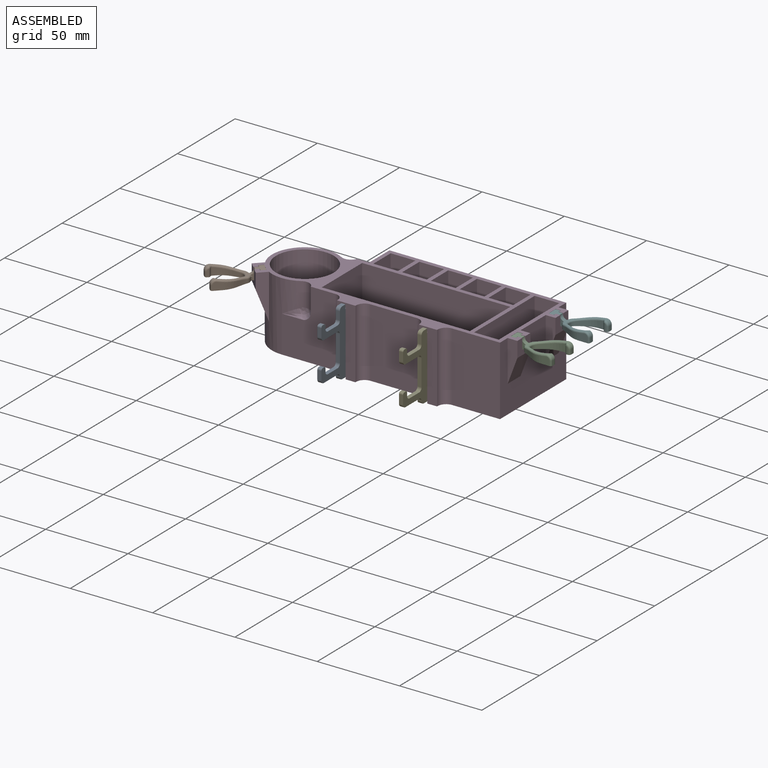
[diagram: assembled view]
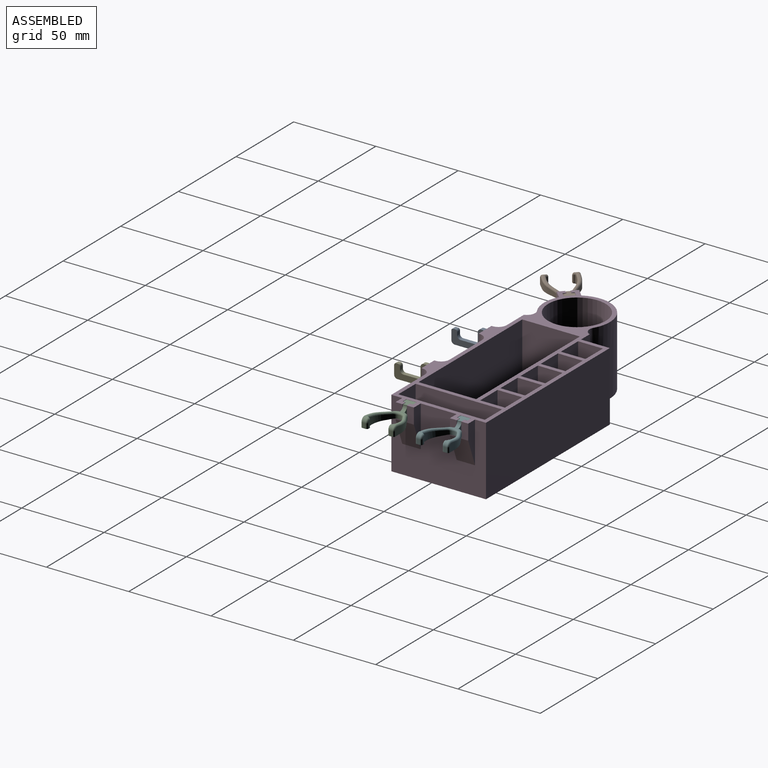
[diagram: assembled view, second angle]
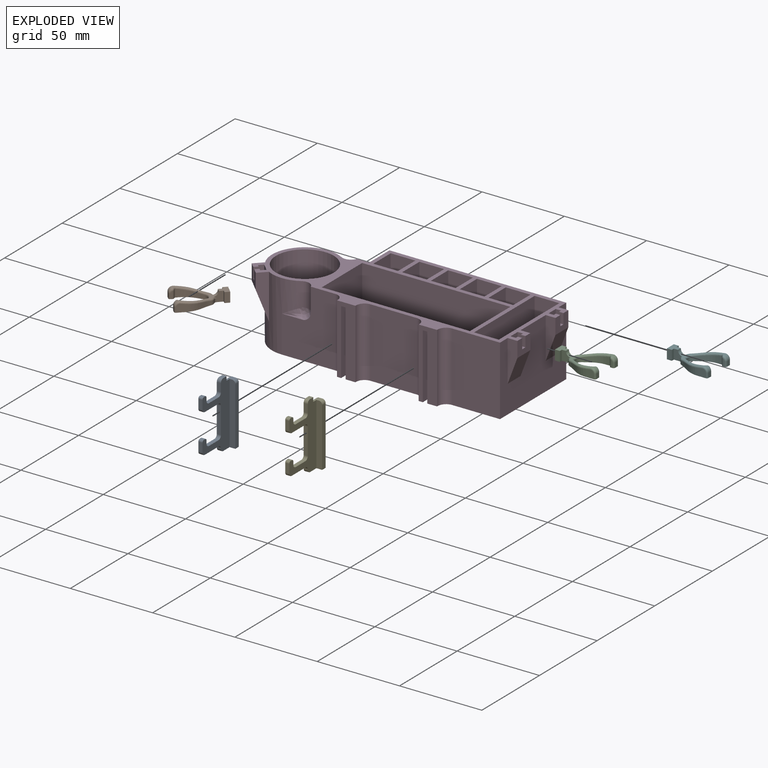
[diagram: exploded view]
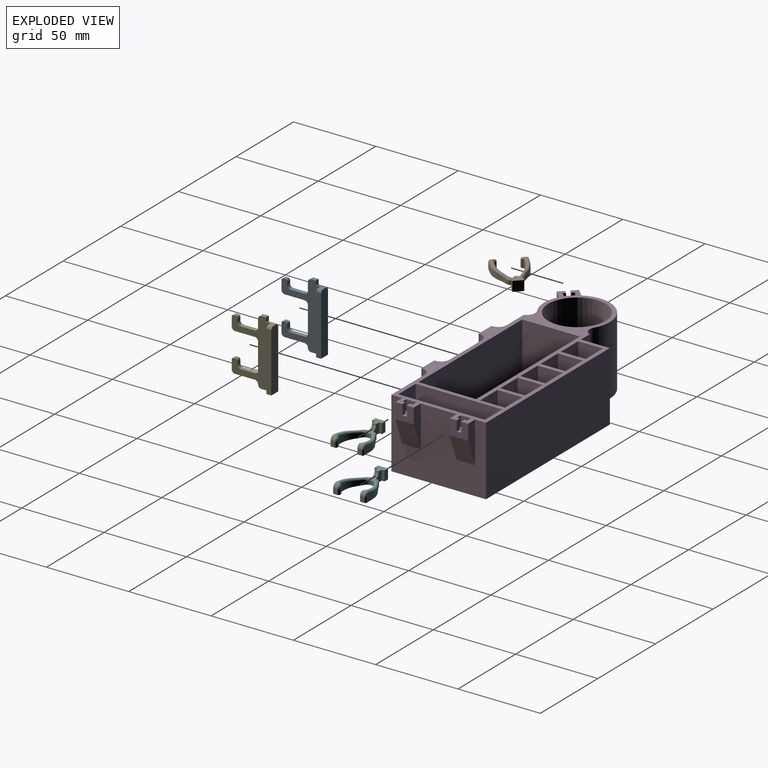
[diagram: exploded view, second angle]
ASSEMBLY  parts=6 mates=5
PART A: 38 faces, bbox 26.5x6x40 mm
  f0: plane 2.8x2.5mm, normal (0,0,1), area 7mm2, adj f15,f16,f19,f35
  f1: plane 16x2.5mm, normal (1,0,0), area 40mm2, adj f15,f16,f17,f22
  f2: plane 12x2.5mm, normal (0,0,-1), area 30mm2, adj f15,f16,f17,f24
  f3: plane 5.34x2.5mm, normal (1,0,0), area 13.3mm2, adj f15,f16,f24,f28
  f4: plane 2.5x1.17mm, normal (0,0,1), area 2.9mm2, adj f15,f16,f27,f28
  f5: plane 2.5x1.84mm, normal (-1,0,0), area 4.6mm2, adj f15,f16,f23,f27
  f6: plane 8.5x2.5mm, normal (0,0,1), area 21.2mm2, adj f15,f16,f18,f23
  f7: plane 5x2.5mm, normal (1,0,0), area 12.5mm2, adj f15,f16,f18,f19
  f8: plane 8.5x6mm, normal (0,0,-1), area 31.8mm2, adj f15,f16,f20,f31,f32,f33
  f9: plane 2.5x0mm, normal (1,0,0), area 0mm2, adj f15,f16,f20,f21
  f10: plane 12x2.5mm, normal (0,0,-1), area 30mm2, adj f15,f16,f21,f26
  f11: plane 5.34x2.5mm, normal (1,0,0), area 13.3mm2, adj f15,f16,f26,f30
  f12: plane 2.5x1.17mm, normal (0,0,1), area 2.9mm2, adj f15,f16,f29,f30
  f13: plane 2.5x1.84mm, normal (-1,0,0), area 4.6mm2, adj f15,f16,f25,f29
  f14: plane 8.5x2.5mm, normal (0,0,1), area 21.2mm2, adj f15,f16,f22,f25
  f15: plane 40.01x26.5mm, normal (0,-1,0), area 542.1mm2, adj f0,f1,f2,f3,f4,f5,f6,f7
  f16: plane 40.01x23.5mm, normal (0,1,0), area 440.8mm2, adj f0,f1,f2,f3,f4,f5,f6,f7
  f17: cylinder r=2mm len=2.5mm, axis (0,-1,0), area 7.9mm2, adj f1,f2,f15,f16
  f18: cylinder r=2mm len=2.5mm, axis (0,1,0), area 7.9mm2, adj f6,f7,f15,f16
  f19: cylinder r=2mm len=2.5mm, axis (0,-1,0), area 7.9mm2, adj f0,f7,f15,f16
  f20: cylinder r=2mm len=2.5mm, axis (0,1,0), area 7.9mm2, adj f8,f9,f15,f16
  f21: cylinder r=2mm len=2.5mm, axis (0,-1,0), area 7.9mm2, adj f9,f10,f15,f16
  f22: cylinder r=2mm len=2.5mm, axis (0,1,0), area 7.9mm2, adj f1,f14,f15,f16
  f23: cylinder r=2mm len=2.5mm, axis (0,1,0), area 7.9mm2, adj f5,f6,f15,f16
  f24: cylinder r=2mm len=2.5mm, axis (0,1,0), area 7.9mm2, adj f2,f3,f15,f16
  f25: cylinder r=2mm len=2.5mm, axis (0,1,0), area 7.9mm2, adj f13,f14,f15,f16
  f26: cylinder r=2mm len=2.5mm, axis (0,1,0), area 7.9mm2, adj f10,f11,f15,f16
  f27: cylinder r=1.17mm len=2.5mm, axis (0,-1,0), area 4.6mm2, adj f4,f5,f15,f16
  f28: cylinder r=1.17mm len=2.5mm, axis (0,-1,0), area 4.6mm2, adj f3,f4,f15,f16
  f29: cylinder r=1.17mm len=2.5mm, axis (0,-1,0), area 4.6mm2, adj f12,f13,f15,f16
  f30: cylinder r=1.17mm len=2.5mm, axis (0,-1,0), area 4.6mm2, adj f11,f12,f15,f16
  f31: plane 37.5x3.5mm, normal (1,0,0), area 130.4mm2, adj f8,f16,f32,f34,f37
  f32: plane 35.54x3mm, normal (0,1,0), area 106.6mm2, adj f8,f31,f33,f37
  f33: plane 37.5x6mm, normal (-1,0,0), area 223.3mm2, adj f8,f15,f32,f34,f36,f37
  f34: plane 5.7x2.08mm, normal (0,0,1), area 7.7mm2, adj f16,f31,f33,f35,f36,f37
  f35: plane 4.47x2.5mm, normal (-1,0,0), area 7.1mm2, adj f0,f15,f16,f34,f36
  f36: cylinder r=1.96mm len=5.7mm, axis (1,0,0), area 17.6mm2, adj f15,f33,f34,f35
  f37: cylinder r=1.96mm len=3mm, axis (1,0,0), area 9.2mm2, adj f31,f32,f33,f34
PART B: 80 faces, bbox 20.6x30.1x6.9 mm
  f0: plane 6x3mm, normal (1,0,0), area 18mm2, adj f1,f19,f20,f78
  f1: plane 6x1.75mm, normal (0,1,0), area 10.5mm2, adj f0,f2,f20,f78
  f2: plane 6.36x5.67mm, normal (1,0,0), area 20.5mm2, adj f1,f20,f21,f25,f57,f77,f78,f79
  f3: plane 3.51x3.28mm, normal (0.85,-0.53,0), area 12.4mm2, adj f20,f30,f32,f54
  f4: plane 4.83x4.79mm, normal (1,0,0), area 21.8mm2, adj f20,f32,f50,f51,f52
  f5: plane 2.97x1.92mm, normal (0,1,0), area 5.7mm2, adj f20,f22,f40,f50
  f6: plane 4.41x0.79mm, normal (-1,0,0), area 3.2mm2, adj f20,f39,f40,f41
  f7: plane 4.63x1.83mm, normal (-1,0,0), area 8.2mm2, adj f20,f33,f59,f64
  f8: plane 3.92x3.13mm, normal (-0.85,0.53,0), area 13.1mm2, adj f20,f28,f33,f66
  f9: plane 2.24x0.38mm, normal (0,1,0), area 0.9mm2, adj f20,f28,f29,f68
  f10: plane 3.92x3.13mm, normal (0.85,0.53,0), area 13.1mm2, adj f20,f29,f34,f70
  f11: plane 4.63x1.83mm, normal (1,0,0), area 8.2mm2, adj f20,f34,f58,f72
  f12: plane 4.41x0.79mm, normal (1,0,0), area 3.2mm2, adj f20,f36,f37,f38
  f13: plane 2.97x1.92mm, normal (0,1,0), area 5.7mm2, adj f20,f23,f36,f42
  f14: plane 4.83x4.79mm, normal (-1,0,0), area 21.8mm2, adj f20,f35,f42,f43,f44
  f15: plane 3.51x3.28mm, normal (-0.85,-0.53,0), area 12.4mm2, adj f20,f31,f35,f46
  f16: plane 6.35x5.67mm, normal (-1,0,0), area 20.5mm2, adj f17,f20,f21,f24,f49,f77,f78,f79
  f17: plane 6x1.75mm, normal (0,1,0), area 10.5mm2, adj f16,f18,f20,f78
  f18: plane 6x3mm, normal (-1,0,0), area 18mm2, adj f17,f19,f20,f78
  f19: plane 6x6mm, normal (0,-1,0), area 36mm2, adj f0,f18,f20,f78
  f20: plane 29.56x20.25mm, normal (0,0,-1), area 155.3mm2, adj f0,f1,f2,f3,f4,f5,f6,f7
  f21: plane 18.34x18.28mm, normal (0,-0.15,0.99), area 20.6mm2, adj f2,f16,f22,f23,f44,f45,f46,f47
  f22: cylinder r=2.8mm len=3.22mm, axis (1,0,0), area 8.2mm2, adj f5,f21,f41,f51,f62
  f23: cylinder r=2.8mm len=3.22mm, axis (1,0,0), area 8.2mm2, adj f13,f21,f38,f43,f74
  f24: cylinder r=1.53mm len=2.14mm, axis (0,0,-1), area 3.8mm2, adj f16,f20,f26,f49
  f25: cylinder r=1.53mm len=2.14mm, axis (0,0,1), area 3.8mm2, adj f2,f20,f27,f57
  f26: cylinder r=3.31mm len=2.32mm, axis (0,0,-1), area 6.2mm2, adj f20,f24,f31,f48
  f27: cylinder r=3.31mm len=2.32mm, axis (0,0,-1), area 6.2mm2, adj f20,f25,f30,f56
  f28: cylinder r=3.3mm len=2.81mm, axis (0,0,1), area 8mm2, adj f8,f9,f20,f67
  f29: cylinder r=3.3mm len=2.81mm, axis (0,0,-1), area 8mm2, adj f9,f10,f20,f69
  f30: cylinder r=23.5mm len=2.76mm, axis (0,0,-1), area 7.9mm2, adj f3,f20,f27,f55
  f31: cylinder r=23.5mm len=2.76mm, axis (0,0,-1), area 7.9mm2, adj f15,f20,f26,f47
  f32: cylinder r=14.75mm len=7.75mm, axis (0,0,-1), area 31.2mm2, adj f3,f4,f20,f53
  f33: cylinder r=14.75mm len=7.75mm, axis (0,0,1), area 30.5mm2, adj f7,f8,f20,f65
  f34: cylinder r=14.75mm len=7.75mm, axis (0,0,1), area 30.5mm2, adj f10,f11,f20,f71
  f35: cylinder r=14.75mm len=7.75mm, axis (0,0,-1), area 31.2mm2, adj f14,f15,f20,f45
  f36: cylinder r=1.1mm len=2.97mm, axis (0,0,-1), area 5.1mm2, adj f12,f13,f20,f38
  f37: cylinder r=1.1mm len=4.6mm, axis (0,0,1), area 6.2mm2, adj f12,f20,f58,f76
  f38: torus R=1.7mm, axis (1,0,0), area 4.5mm2, adj f12,f23,f36,f75,f76
  f39: cylinder r=1.1mm len=4.6mm, axis (0,0,1), area 6.2mm2, adj f6,f20,f59,f60
  f40: cylinder r=1.1mm len=2.97mm, axis (0,0,-1), area 5.1mm2, adj f5,f6,f20,f41
  f41: torus R=1.7mm, axis (1,0,0), area 4.5mm2, adj f6,f22,f40,f60,f61
  f42: cylinder r=0.98mm len=2.97mm, axis (0,0,-1), area 4.6mm2, adj f13,f14,f20,f43
  f43: torus R=1.82mm, axis (-1,0,0), area 6.5mm2, adj f14,f23,f42,f44
  f44: cylinder r=0.98mm len=2.89mm, axis (0,0.99,0.15), area 4.3mm2, adj f14,f21,f43,f45
  f45: bspline ~7.76x3.03mm, area 12.1mm2, adj f21,f35,f44,f46
  f46: cylinder r=0.98mm len=3.89mm, axis (-0.52,0.84,0.13), area 6.1mm2, adj f15,f21,f45,f47
  f47: bspline ~3.15x2.36mm, area 4.7mm2, adj f21,f31,f46,f48
  f48: bspline ~2.3x2.05mm, area 3.5mm2, adj f21,f26,f47,f49
  f49: bspline ~2.89x2.18mm, area 2.1mm2, adj f16,f21,f24,f48
  f50: cylinder r=0.98mm len=2.97mm, axis (0,0,-1), area 4.6mm2, adj f4,f5,f20,f51
  f51: torus R=1.82mm, axis (-1,0,0), area 6.5mm2, adj f4,f22,f50,f52
  f52: cylinder r=0.98mm len=2.89mm, axis (0,-0.99,-0.15), area 4.3mm2, adj f4,f21,f51,f53
  f53: bspline ~7.76x3.03mm, area 12.1mm2, adj f21,f32,f52,f54
  f54: cylinder r=0.98mm len=3.89mm, axis (-0.52,-0.84,-0.13), area 6.1mm2, adj f3,f21,f53,f55
  f55: bspline ~3.15x2.36mm, area 4.7mm2, adj f21,f30,f54,f56
  f56: bspline ~2.3x2.05mm, area 3.5mm2, adj f21,f27,f55,f57
  f57: bspline ~2.89x2.18mm, area 2.1mm2, adj f2,f21,f25,f56
  f58: bspline ~6.34x1.05mm, area 6.6mm2, adj f11,f20,f37,f73,f74,f75
  f59: bspline ~6.34x1.05mm, area 6.6mm2, adj f7,f20,f39,f61,f62,f63
  f60: bspline ~1.58x1.38mm, area 1mm2, adj f39,f41,f61
  f61: bspline ~1.63x1.39mm, area 0.5mm2, adj f41,f59,f60,f62
  f62: bspline ~2.33x1.91mm, area 2.3mm2, adj f22,f59,f61,f63
  f63: bspline ~1.45x1.19mm, area 1mm2, adj f21,f59,f62,f64
  f64: cylinder r=0.98mm len=1.97mm, axis (0,0.99,0.15), area 2.8mm2, adj f7,f21,f63,f65
  f65: bspline ~12.85x4.5mm, area 13.3mm2, adj f21,f33,f64,f66
  f66: cylinder r=0.98mm len=4.58mm, axis (0.52,0.84,0.13), area 7.5mm2, adj f8,f21,f65,f67
  f67: bspline ~3.64x2.69mm, area 6.2mm2, adj f21,f28,f66,f68
  f68: cylinder r=0.98mm len=1.13mm, axis (1,0,0), area 0.6mm2, adj f9,f21,f67,f69
  f69: bspline ~3.64x2.69mm, area 6.2mm2, adj f21,f29,f68,f70
  f70: cylinder r=0.98mm len=4.58mm, axis (0.52,-0.84,-0.13), area 7.5mm2, adj f10,f21,f69,f71
  f71: bspline ~12.85x4.5mm, area 13.3mm2, adj f21,f34,f70,f72
  f72: cylinder r=0.98mm len=1.97mm, axis (0,-0.99,-0.15), area 2.8mm2, adj f11,f21,f71,f73
  f73: bspline ~1.45x1.19mm, area 1mm2, adj f21,f58,f72,f74
  f74: bspline ~2.1x1.84mm, area 2.3mm2, adj f23,f58,f73,f75
  f75: bspline ~1.63x1.39mm, area 0.5mm2, adj f38,f58,f74,f76
  f76: bspline ~1.58x1.38mm, area 1mm2, adj f37,f38,f75
  f77: plane 2.5x0.04mm, normal (0,1,0), area 0.1mm2, adj f2,f16,f78,f79
  f78: plane 6x5.5mm, normal (0,0,1), area 24.2mm2, adj f0,f1,f2,f16,f17,f18,f19,f77
  f79: cylinder r=3mm len=2.96mm, axis (1,0,0), area 10.5mm2, adj f2,f16,f21,f77
PART C: same geometry as B
PART D: 115 faces, bbox 160.7x63.2x42 mm
  f0: plane 6.2x6.2mm, normal (1,0,0), area 38.4mm2, adj f14,f102,f110,f112
  f1: plane 57.5x42mm, normal (1,0,0), area 1852.6mm2, adj f14,f16,f28,f70,f94,f100,f103,f109
  f2: plane 6.2x6.2mm, normal (1,0,0), area 38.4mm2, adj f14,f93,f101,f111
  f3: plane 39.5x15mm, normal (0,1,0), area 592.5mm2, adj f14,f68,f74,f79
  f4: plane 39.5x15mm, normal (0,1,0), area 592.5mm2, adj f14,f59,f60,f76
  f5: plane 39.5x15mm, normal (0,1,0), area 592.5mm2, adj f14,f62,f71,f80
  f6: plane 39.5x15mm, normal (0,1,0), area 592.5mm2, adj f14,f63,f64,f78
  f7: plane 39.5x15mm, normal (0,1,0), area 592.5mm2, adj f14,f65,f66,f77
  f8: plane 42x25.05mm, normal (0,1,0), area 716.4mm2, adj f14,f16,f27,f47,f48,f49,f58
  f9: plane 39.5x15mm, normal (0,1,0), area 592.5mm2, adj f10,f11,f12,f14
  f10: plane 52.5x39.5mm, normal (1,0,0), area 2073.7mm2, adj f9,f12,f14,f69
  f11: plane 52.5x39.5mm, normal (-1,0,0), area 2073.7mm2, adj f9,f12,f14,f69
  f12: plane 52.5x15mm, normal (0,0,1), area 787.5mm2, adj f9,f10,f11,f69
  f13: plane 6.2x5.7mm, normal (0,0,-1), area 26.6mm2, adj f17,f18,f19,f20,f21,f34
  f14: plane 160.68x63.2mm, normal (0,0,1), area 1995.6mm2, adj f0,f1,f2,f3,f4,f5,f6,f7
  f15: plane 6.2x5.7mm, normal (0,0,-1), area 26.6mm2, adj f22,f23,f24,f25,f26,f30
  f16: plane 152.5x63.2mm, normal (0,0,-1), area 7905.3mm2, adj f1,f8,f17,f18,f19,f20,f21,f22
  f17: plane 39.5x6.2mm, normal (0,-1,0), area 244.9mm2, adj f13,f16,f18,f21
  f18: plane 39.5x3.2mm, normal (-1,0,0), area 126.4mm2, adj f13,f16,f17,f19
  f19: plane 39.5x3.5mm, normal (0,1,0), area 138.2mm2, adj f13,f16,f18,f20
  f20: plane 39.5x2.5mm, normal (-1,0,0), area 98.8mm2, adj f13,f16,f19,f34
  f21: plane 39.5x5.7mm, normal (1,0,0), area 225.1mm2, adj f13,f16,f17,f34
  f22: plane 39.5x6.2mm, normal (0,-1,0), area 244.9mm2, adj f15,f16,f23,f26
  f23: plane 39.5x3.2mm, normal (-1,0,0), area 126.4mm2, adj f15,f16,f22,f24
  f24: plane 39.5x3.5mm, normal (0,1,0), area 138.2mm2, adj f15,f16,f23,f25
  f25: plane 39.5x2.5mm, normal (-1,0,0), area 98.8mm2, adj f15,f16,f24,f30
  f26: plane 39.5x5.7mm, normal (1,0,0), area 225.1mm2, adj f15,f16,f22,f30
  f27: cylinder r=20mm len=42mm, axis (0,0,1), area 2698.7mm2, adj f8,f14,f16,f36,f44,f45,f46,f47
  f28: plane 42x29.14mm, normal (0,-1,0), area 1223.7mm2, adj f1,f14,f16,f50
  f29: plane 42x0.62mm, normal (1,0,0), area 26mm2, adj f14,f16,f30,f50
  f30: plane 42x11.2mm, normal (0,-1,0), area 363.8mm2, adj f14,f15,f16,f25,f26,f29,f31
  f31: plane 42x0.62mm, normal (-1,0,0), area 26mm2, adj f14,f16,f30,f53
  f32: plane 42x28.25mm, normal (0,-1,0), area 1186.7mm2, adj f14,f16,f52,f53
  f33: plane 42x0.62mm, normal (1,0,0), area 26mm2, adj f14,f16,f34,f52
  f34: plane 42x11.2mm, normal (0,-1,0), area 363.8mm2, adj f13,f14,f16,f20,f21,f33,f35
  f35: plane 42x0.62mm, normal (-1,0,0), area 26mm2, adj f14,f16,f34,f51
  f36: plane 42x32.39mm, normal (0,-1,0), area 1024.7mm2, adj f14,f16,f27,f44,f45,f46,f51
  f37: plane 79.84x24.84mm, normal (0,0,1), area 1983.2mm2, adj f54,f55,f56,f57
  f38: plane 35x34.42mm, normal (1,0,0), area 1204.7mm2, adj f14,f39,f41,f56
  f39: plane 90x34.42mm, normal (0,1,0), area 3097.8mm2, adj f14,f38,f40,f57
  f40: plane 35x34.42mm, normal (-1,0,0), area 1204.7mm2, adj f14,f39,f41,f55
  f41: plane 90x34.42mm, normal (0,-1,0), area 3097.8mm2, adj f14,f38,f40,f54
  f42: plane 35x35mm, normal (0,0,1), area 962.1mm2, adj f43
  f43: cylinder r=17.5mm len=39.5mm, axis (0,0,-1), area 4343.3mm2, adj f14,f42
  f44: bspline ~13.08x4.89mm, area 33.2mm2, adj f27,f36,f45
  f45: bspline ~7.62x6.66mm, area 40.3mm2, adj f27,f36,f44,f46
  f46: cylinder r=5.08mm len=14.42mm, axis (0,0,1), area 130mm2, adj f14,f27,f36,f45
  f47: bspline ~13.08x4.89mm, area 33.7mm2, adj f8,f27,f48
  f48: bspline ~7.8x6.34mm, area 40.3mm2, adj f8,f27,f47,f49
  f49: cylinder r=5.08mm len=14.42mm, axis (0,0,1), area 130mm2, adj f8,f14,f27,f48
  f50: cylinder r=5.08mm len=42mm, axis (0,0,1), area 335.1mm2, adj f14,f16,f28,f29
  f51: cylinder r=5.08mm len=42mm, axis (0,0,1), area 335.1mm2, adj f14,f16,f35,f36
  f52: cylinder r=5.08mm len=42mm, axis (0,0,1), area 335.1mm2, adj f14,f16,f32,f33
  f53: cylinder r=5.08mm len=42mm, axis (0,0,-1), area 335.1mm2, adj f14,f16,f31,f32
  f54: cylinder r=5.08mm len=90mm, axis (1,0,0), area 688.7mm2, adj f37,f41,f55,f56
  f55: cylinder r=5.08mm len=35mm, axis (0,-1,0), area 249.8mm2, adj f37,f40,f54,f57
  f56: cylinder r=5.08mm len=35mm, axis (0,1,0), area 249.8mm2, adj f37,f38,f54,f57
  f57: cylinder r=5.08mm len=90mm, axis (-1,0,0), area 688.7mm2, adj f37,f39,f55,f56
  f58: plane 42x17.5mm, normal (-1,0,0), area 735mm2, adj f8,f14,f16,f70
  f59: plane 39.5x15mm, normal (-1,0,0), area 592.5mm2, adj f4,f14,f75,f76
  f60: plane 39.5x15mm, normal (1,0,0), area 592.5mm2, adj f4,f14,f75,f76
  f61: plane 39.5x15mm, normal (0,-1,0), area 592.5mm2, adj f14,f62,f71,f80
  f62: plane 39.5x15mm, normal (-1,0,0), area 592.5mm2, adj f5,f14,f61,f80
  f63: plane 39.5x15mm, normal (-1,0,0), area 592.5mm2, adj f6,f14,f72,f78
  f64: plane 39.5x15mm, normal (1,0,0), area 592.5mm2, adj f6,f14,f72,f78
  f65: plane 39.5x15mm, normal (-1,0,0), area 592.5mm2, adj f7,f14,f73,f77
  f66: plane 39.5x15mm, normal (1,0,0), area 592.5mm2, adj f7,f14,f73,f77
  f67: plane 39.5x15mm, normal (0,-1,0), area 592.5mm2, adj f14,f68,f74,f79
  f68: plane 39.5x15mm, normal (-1,0,0), area 592.5mm2, adj f3,f14,f67,f79
  f69: plane 39.5x15mm, normal (0,-1,0), area 592.5mm2, adj f10,f11,f12,f14
  f70: plane 107.45x42mm, normal (0,1,0), area 4512.9mm2, adj f1,f14,f16,f58
  f71: plane 39.5x15mm, normal (1,0,0), area 592.5mm2, adj f5,f14,f61,f80
  f72: plane 39.5x15mm, normal (0,-1,0), area 592.5mm2, adj f14,f63,f64,f78
  f73: plane 39.5x15mm, normal (0,-1,0), area 592.5mm2, adj f14,f65,f66,f77
  f74: plane 39.5x15mm, normal (1,0,0), area 592.5mm2, adj f3,f14,f67,f79
  f75: plane 39.5x15mm, normal (0,-1,0), area 592.5mm2, adj f14,f59,f60,f76
  f76: plane 15x15mm, normal (0,0,1), area 225mm2, adj f4,f59,f60,f75
  f77: plane 15x15mm, normal (0,0,1), area 225mm2, adj f7,f65,f66,f73
  f78: plane 15x15mm, normal (0,0,1), area 225mm2, adj f6,f63,f64,f72
  f79: plane 15x15mm, normal (0,0,1), area 225mm2, adj f3,f67,f68,f74
  f80: plane 15x15mm, normal (0,0,1), area 225mm2, adj f5,f61,f62,f71
  f81: plane 6.2x4.45mm, normal (-0.71,-0.71,0), area 39mm2, adj f14,f86,f90,f91
  f82: plane 27.25x4.74mm, normal (-0.71,0.71,0), area 122.7mm2, adj f14,f27,f83,f92
  f83: plane 9.38x8mm, normal (-0.71,-0.71,0), area 89.4mm2, adj f14,f82,f84,f88,f89,f91,f92
  f84: plane 6.2x1.91mm, normal (0.71,-0.71,0), area 16.7mm2, adj f14,f83,f85,f91
  f85: plane 6.2x1.24mm, normal (0.71,0.71,0), area 10.9mm2, adj f14,f84,f86,f91
  f86: plane 6.2x2.33mm, normal (0.73,-0.69,0), area 19.8mm2, adj f14,f81,f85,f91
  f87: plane 6.2x1.24mm, normal (0.71,0.71,0), area 10.9mm2, adj f14,f88,f90,f91
  f88: plane 6.2x1.91mm, normal (-0.71,0.71,0), area 16.7mm2, adj f14,f83,f87,f91
  f89: plane 27.32x4.76mm, normal (0.71,-0.71,0), area 123.5mm2, adj f14,f27,f83,f92
  f90: plane 6.2x2.26mm, normal (-0.71,0.71,0), area 19.8mm2, adj f14,f81,f87,f91
  f91: plane 7.38x7.32mm, normal (0,0,1), area 27.3mm2, adj f81,f83,f84,f85,f86,f87,f88,f90
  f92: plane 17.95x12.76mm, normal (-0.66,-0.66,-0.35), area 198.9mm2, adj f27,f82,f83,f89
  f93: plane 6.2x3.2mm, normal (0,1,0), area 19.8mm2, adj f2,f14,f97,f111
  f94: plane 25.11x5.9mm, normal (0,-1,0), area 101.7mm2, adj f1,f14,f95,f113
  f95: plane 11.2x9.38mm, normal (1,0,0), area 88.2mm2, adj f14,f94,f96,f99,f100,f111,f113
  f96: plane 6.2x2.7mm, normal (0,1,0), area 16.7mm2, adj f14,f95,f97,f111
  f97: plane 6.2x1.75mm, normal (-1,0,0), area 10.9mm2, adj f14,f93,f96,f111
  f98: plane 6.2x1.75mm, normal (-1,0,0), area 10.9mm2, adj f14,f99,f101,f111
  f99: plane 6.2x2.7mm, normal (0,-1,0), area 16.7mm2, adj f14,f95,f98,f111
  f100: plane 25.11x5.9mm, normal (0,1,0), area 101.7mm2, adj f1,f14,f95,f113
  f101: plane 6.2x3.2mm, normal (0,-1,0), area 19.8mm2, adj f2,f14,f98,f111
  f102: plane 6.2x3.2mm, normal (0,1,0), area 19.8mm2, adj f0,f14,f106,f112
  f103: plane 25.11x5.9mm, normal (0,-1,0), area 101.7mm2, adj f1,f14,f104,f114
  f104: plane 11.2x9.38mm, normal (1,0,0), area 88.3mm2, adj f14,f103,f105,f108,f109,f112,f114
  f105: plane 6.2x2.7mm, normal (0,1,0), area 16.7mm2, adj f14,f104,f106,f112
  f106: plane 6.2x1.75mm, normal (-1,0,0), area 10.9mm2, adj f14,f102,f105,f112
  f107: plane 6.2x1.75mm, normal (-1,0,0), area 10.8mm2, adj f14,f108,f110,f112
  f108: plane 6.2x2.7mm, normal (0,-1,0), area 16.7mm2, adj f14,f104,f107,f112
  f109: plane 25.11x5.9mm, normal (0,1,0), area 101.7mm2, adj f1,f14,f104,f114
  f110: plane 6.2x3.2mm, normal (0,-1,0), area 19.8mm2, adj f0,f14,f107,f112
  f111: plane 6.2x5.9mm, normal (0,0,1), area 27.1mm2, adj f2,f93,f95,f96,f97,f98,f99,f101
  f112: plane 6.2x5.9mm, normal (0,0,1), area 27.1mm2, adj f0,f102,f104,f105,f106,f107,f108,f110
  f113: plane 15.73x11.2mm, normal (0.94,0,-0.35), area 188.2mm2, adj f1,f94,f95,f100
  f114: plane 15.73x11.2mm, normal (0.94,0,-0.35), area 188.2mm2, adj f1,f103,f104,f109
PART E: same geometry as A
PART F: same geometry as B
PLACE A rot(axis=(0,0,-1),90deg) t=(-24.93,-23,-1.36)mm
PLACE B rot(axis=(0,0,1),135deg) t=(-82.7,-15.2,33.4)mm
PLACE C rot(axis=(0,0,-1),90deg) t=(66.5,-7.76,33.4)mm
PLACE D at identity
PLACE E rot(axis=(0,0,-1),90deg) t=(24.68,-23,-1.36)mm
PLACE F rot(axis=(0,0,-1),90deg) t=(66.5,25.26,33.4)mm
MATE planar F.f19 <-> D.f0  axis (-1,0,0) through (65,25.26,36.4)mm
MATE planar E.f33 <-> D.f22  axis (0,1,0) through (25.18,-20,17.25)mm
MATE planar B.f19 <-> D.f81  axis (0.71,0.71,0) through (-81.64,-14.14,36.4)mm
MATE planar C.f19 <-> D.f2  axis (-1,0,0) through (65,-7.76,36.4)mm
MATE planar A.f33 <-> D.f17  axis (0,1,0) through (-24.43,-20,17.25)mm
